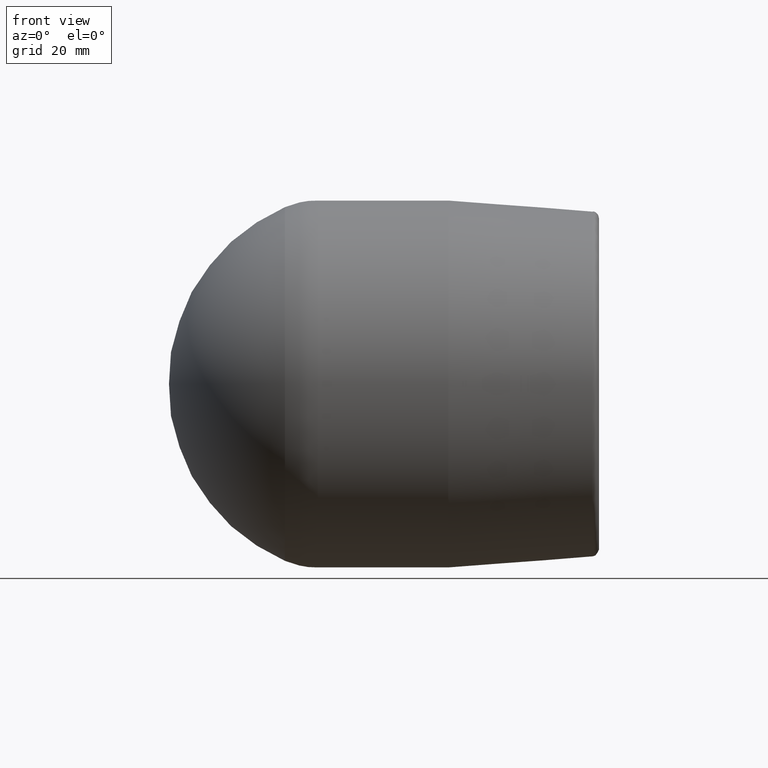
[diagram: clean part render]
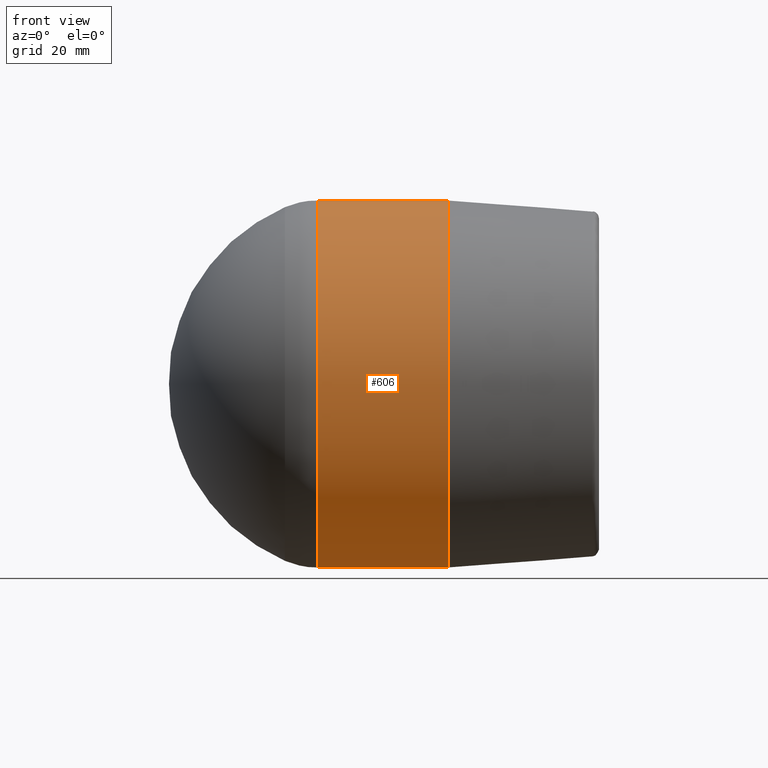
[diagram: same view with one face highlighted and labeled with its STEP entity id]
A machine part, front view. The second image highlights one B-rep face of the part: STEP entity #606.
In plain terms, the highlighted cylindrical surface (bore or boss wall) has radius 40.5 mm, axis along (1, 0, 0).
Its self-contained STEP definition (entity closure, byte-faithful):
#32=FACE_BOUND('',#203,.T.);
#33=FACE_BOUND('',#204,.T.);
#46=CYLINDRICAL_SURFACE('',#690,40.5);
#68=B_SPLINE_CURVE_WITH_KNOTS('',3,(#1140,#1141,#1142,#1143,#1144,#1145,
#1146,#1147,#1148,#1149,#1150,#1151,#1152,#1153,#1154,#1155,#1156,#1157,
#1158,#1159,#1160,#1161,#1162,#1163,#1164,#1165,#1166,#1167,#1168,#1169,
#1170,#1171,#1172,#1173),.UNSPECIFIED.,.T.,.F.,(4,2,2,2,2,2,2,2,2,2,2,2,
2,2,2,2,4),(0.,0.357124679425614,0.714249358851229,1.07044964198426,1.42664992511729,
1.78285020825031,2.13905049138334,2.49617517080896,2.85329985023457,3.21042452966019,
3.5675492090858,3.92374949221883,4.27994977535186,4.63615005848489,4.99235034161791,
5.34947502104353,5.70659970046914),.UNSPECIFIED.);
#144=FACE_OUTER_BOUND('',#202,.T.);
#202=EDGE_LOOP('',(#520));
#203=EDGE_LOOP('',(#521));
#204=EDGE_LOOP('',(#522));
#256=CIRCLE('',#686,40.5);
#259=CIRCLE('',#691,40.5);
#310=VERTEX_POINT('',#1139);
#311=VERTEX_POINT('',#1175);
#314=VERTEX_POINT('',#1183);
#385=EDGE_CURVE('',#310,#310,#68,.T.);
#386=EDGE_CURVE('',#311,#311,#256,.T.);
#389=EDGE_CURVE('',#314,#314,#259,.T.);
#520=ORIENTED_EDGE('',*,*,#389,.T.);
#521=ORIENTED_EDGE('',*,*,#385,.T.);
#522=ORIENTED_EDGE('',*,*,#386,.F.);
#606=ADVANCED_FACE('',(#144,#32,#33),#46,.T.);
#686=AXIS2_PLACEMENT_3D('',#1176,#866,#867);
#690=AXIS2_PLACEMENT_3D('',#1182,#874,#875);
#691=AXIS2_PLACEMENT_3D('',#1184,#876,#877);
#866=DIRECTION('center_axis',(1.,2.94252051263958E-17,0.));
#867=DIRECTION('ref_axis',(2.93403847171386E-17,-1.,0.));
#874=DIRECTION('center_axis',(1.,2.94252051263958E-17,0.));
#875=DIRECTION('ref_axis',(0.,1.,0.));
#876=DIRECTION('center_axis',(1.,2.94252051263958E-17,0.));
#877=DIRECTION('ref_axis',(0.,0.,-1.));
#1139=CARTESIAN_POINT('',(-47.5,39.3749969216185,-9.47943128159751));
#1140=CARTESIAN_POINT('Ctrl Pts',(-47.5,39.3749969216185,-9.47943128159751));
#1141=CARTESIAN_POINT('Ctrl Pts',(-46.3095844019146,39.3749969216185,-9.47943128159751));
#1142=CARTESIAN_POINT('Ctrl Pts',(-45.0446214264032,39.4358932755073,-9.23639834041058));
#1143=CARTESIAN_POINT('Ctrl Pts',(-42.7274146582795,39.6521949699803,-8.25858087289601));
#1144=CARTESIAN_POINT('Ctrl Pts',(-41.6747120141923,39.8041187945452,-7.52411675858816));
#1145=CARTESIAN_POINT('Ctrl Pts',(-40.0192888266729,40.0856953371393,-5.84067291043759));
#1146=CARTESIAN_POINT('Ctrl Pts',(-39.3035068510104,40.2340318263499,-4.77877739183327));
#1147=CARTESIAN_POINT('Ctrl Pts',(-38.3532636951993,40.4425568303723,-2.45226974630976));
#1148=CARTESIAN_POINT('Ctrl Pts',(-38.1189937341926,40.5,-1.18733427711009));
#1149=CARTESIAN_POINT('Ctrl Pts',(-38.1189937341926,40.5,1.18733427711009));
#1150=CARTESIAN_POINT('Ctrl Pts',(-38.3532636951993,40.4425568303723,2.45226974630976));
#1151=CARTESIAN_POINT('Ctrl Pts',(-39.3035068510104,40.2340318263499,4.77877739183327));
#1152=CARTESIAN_POINT('Ctrl Pts',(-40.0192888266729,40.0856953371393,5.84067291043759));
#1153=CARTESIAN_POINT('Ctrl Pts',(-41.6747120141923,39.8041187945452,7.52411675858816));
#1154=CARTESIAN_POINT('Ctrl Pts',(-42.7274146582795,39.6521949699803,8.25858087289601));
#1155=CARTESIAN_POINT('Ctrl Pts',(-45.0446214264032,39.4358932755073,9.23639834041058));
#1156=CARTESIAN_POINT('Ctrl Pts',(-46.3095844019146,39.3749969216185,9.47943128159751));
#1157=CARTESIAN_POINT('Ctrl Pts',(-48.6904155980854,39.3749969216185,9.47943128159751));
#1158=CARTESIAN_POINT('Ctrl Pts',(-49.9553785735968,39.4358932755073,9.23639834041058));
#1159=CARTESIAN_POINT('Ctrl Pts',(-52.2725853417205,39.6521949699803,8.25858087289601));
#1160=CARTESIAN_POINT('Ctrl Pts',(-53.3252879858077,39.8041187945452,7.52411675858817));
#1161=CARTESIAN_POINT('Ctrl Pts',(-54.9807111733271,40.0856953371393,5.84067291043759));
#1162=CARTESIAN_POINT('Ctrl Pts',(-55.6964931489896,40.2340318263499,4.77877739183327));
#1163=CARTESIAN_POINT('Ctrl Pts',(-56.6467363048007,40.4425568303723,2.45226974630977));
#1164=CARTESIAN_POINT('Ctrl Pts',(-56.8810062658074,40.5,1.1873342771101));
#1165=CARTESIAN_POINT('Ctrl Pts',(-56.8810062658074,40.5,-1.18733427711009));
#1166=CARTESIAN_POINT('Ctrl Pts',(-56.6467363048007,40.4425568303723,-2.45226974630977));
#1167=CARTESIAN_POINT('Ctrl Pts',(-55.6964931489896,40.2340318263499,-4.77877739183327));
#1168=CARTESIAN_POINT('Ctrl Pts',(-54.9807111733271,40.0856953371393,-5.84067291043759));
#1169=CARTESIAN_POINT('Ctrl Pts',(-53.3252879858077,39.8041187945452,-7.52411675858816));
#1170=CARTESIAN_POINT('Ctrl Pts',(-52.2725853417205,39.6521949699803,-8.25858087289601));
#1171=CARTESIAN_POINT('Ctrl Pts',(-49.9553785735968,39.4358932755073,-9.23639834041058));
#1172=CARTESIAN_POINT('Ctrl Pts',(-48.6904155980854,39.3749969216185,-9.47943128159751));
#1173=CARTESIAN_POINT('Ctrl Pts',(-47.5,39.3749969216185,-9.47943128159751));
#1175=CARTESIAN_POINT('',(-33.3091181588712,40.5,4.95981953654678E-15));
#1176=CARTESIAN_POINT('Origin',(-33.3091181588712,-9.80127634404142E-16,
0.));
#1182=CARTESIAN_POINT('Origin',(-31.,-9.12181358918271E-16,0.));
#1183=CARTESIAN_POINT('',(-62.,40.5,0.));
#1184=CARTESIAN_POINT('Origin',(-62.,-1.82436271783654E-15,0.));